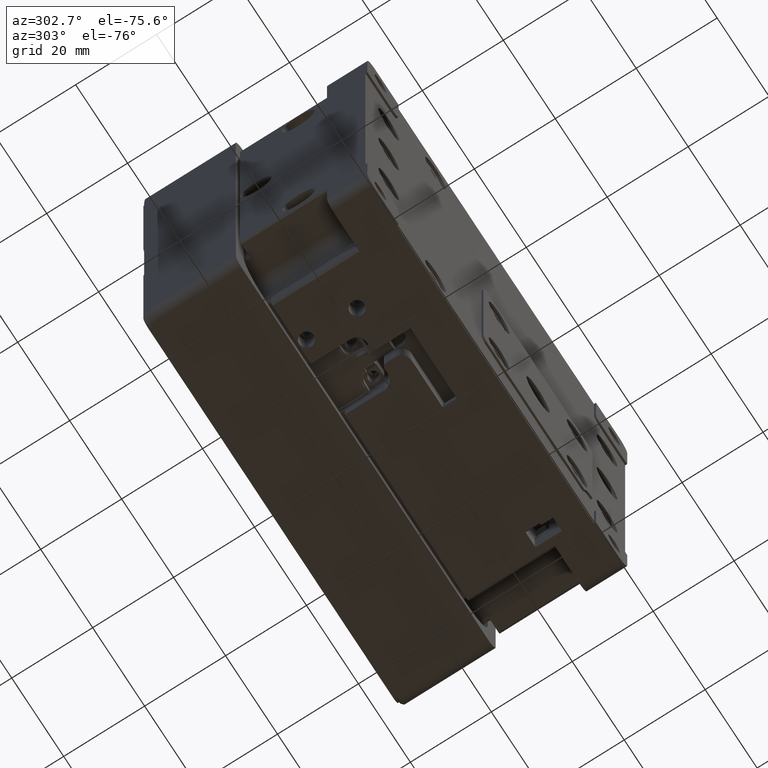
[diagram: clean part render]
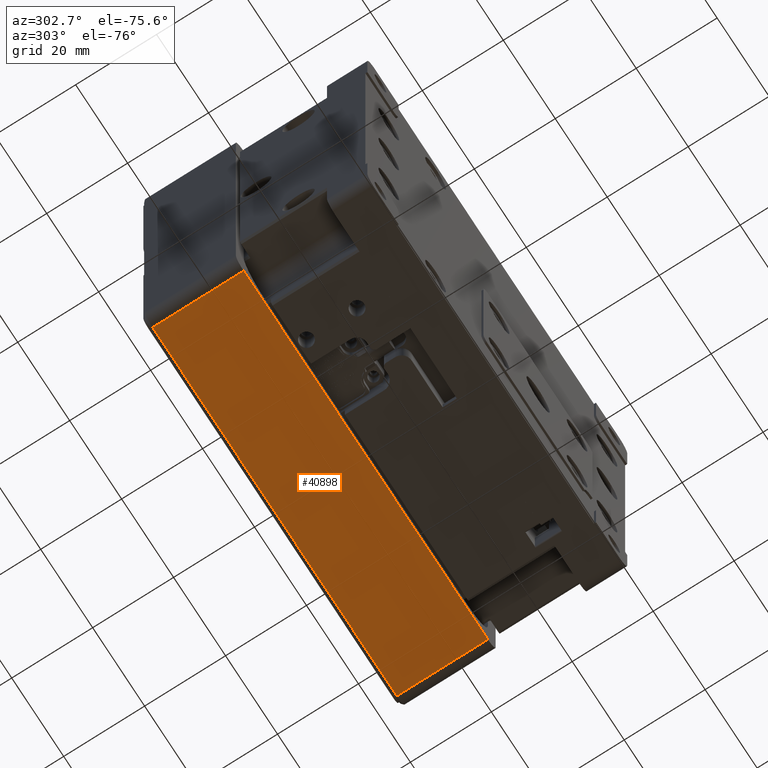
[diagram: same view with one face highlighted and labeled with its STEP entity id]
A machine part, auxiliary view. The second image highlights one B-rep face of the part: STEP entity #40898.
In plain terms, the highlighted planar face has unit normal (0, 0, 1).
Its self-contained STEP definition (entity closure, byte-faithful):
#3971 = ORIENTED_EDGE ( 'NONE', *, *, #10788, .T. ) ;
#4860 = FACE_OUTER_BOUND ( 'NONE', #13596, .T. ) ;
#6043 = CARTESIAN_POINT ( 'NONE',  ( -47.00000000000001421, 55.00000000001590905, -50.00000000003127809 ) ) ;
#6598 = ORIENTED_EDGE ( 'NONE', *, *, #32698, .F. ) ;
#8952 = VECTOR ( 'NONE', #54180, 1000.000000000000000 ) ;
#8966 = EDGE_CURVE ( 'NONE', #52054, #51327, #37172, .T. ) ;
#9589 = LINE ( 'NONE', #18769, #8952 ) ;
#10788 = EDGE_CURVE ( 'NONE', #52054, #29390, #34027, .T. ) ;
#11781 = CARTESIAN_POINT ( 'NONE',  ( -47.00000000000000711, 32.50000000000000000, -50.00000000000001421 ) ) ;
#12145 = DIRECTION ( 'NONE',  ( -1.000000000000000000, -0.000000000000000000, 0.000000000000000000 ) ) ;
#12566 = VECTOR ( 'NONE', #34674, 1000.000000000000000 ) ;
#13596 = EDGE_LOOP ( 'NONE', ( #21644, #3971, #6598, #24275 ) ) ;
#16131 = VECTOR ( 'NONE', #50430, 1000.000000000000000 ) ;
#18373 = DIRECTION ( 'NONE',  ( 1.000000000000000000, 0.000000000000000000, -0.000000000000000000 ) ) ;
#18769 = CARTESIAN_POINT ( 'NONE',  ( -47.00000000000000711, 55.49999999999999289, -50.00000000000001421 ) ) ;
#19934 = VECTOR ( 'NONE', #12145, 1000.000000000000000 ) ;
#20867 = CARTESIAN_POINT ( 'NONE',  ( 47.00000000000000000, 54.99999999999999289, -50.00000000000001421 ) ) ;
#21418 = LINE ( 'NONE', #44694, #12566 ) ;
#21644 = ORIENTED_EDGE ( 'NONE', *, *, #8966, .F. ) ;
#24275 = ORIENTED_EDGE ( 'NONE', *, *, #51474, .F. ) ;
#29390 = VERTEX_POINT ( 'NONE', #11781 ) ;
#30408 = CARTESIAN_POINT ( 'NONE',  ( 46.99999999999999289, 32.50000000000000000, -50.00000000000001421 ) ) ;
#31338 = CARTESIAN_POINT ( 'NONE',  ( -50.00000000000000711, 55.49999999999999289, -50.00000000000001421 ) ) ;
#32698 = EDGE_CURVE ( 'NONE', #40732, #29390, #9589, .T. ) ;
#34027 = LINE ( 'NONE', #51561, #19934 ) ;
#34674 = DIRECTION ( 'NONE',  ( -1.000000000000000000, -0.000000000000000000, 0.000000000000000000 ) ) ;
#35920 = PLANE ( 'NONE',  #47103 ) ;
#37172 = LINE ( 'NONE', #38020, #16131 ) ;
#38020 = CARTESIAN_POINT ( 'NONE',  ( 46.99999999999999289, 55.49999999999999289, -50.00000000000001421 ) ) ;
#40732 = VERTEX_POINT ( 'NONE', #6043 ) ;
#40898 = ADVANCED_FACE ( 'NONE', ( #4860 ), #35920, .F. ) ;
#44694 = CARTESIAN_POINT ( 'NONE',  ( -50.00000000000000711, 54.99999999999999289, -50.00000000000001421 ) ) ;
#47103 = AXIS2_PLACEMENT_3D ( 'NONE', #31338, #48881, #18373 ) ;
#48881 = DIRECTION ( 'NONE',  ( 0.000000000000000000, 0.000000000000000000, 1.000000000000000000 ) ) ;
#50430 = DIRECTION ( 'NONE',  ( -0.000000000000000000, 1.000000000000000000, 0.000000000000000000 ) ) ;
#51327 = VERTEX_POINT ( 'NONE', #20867 ) ;
#51474 = EDGE_CURVE ( 'NONE', #51327, #40732, #21418, .T. ) ;
#51561 = CARTESIAN_POINT ( 'NONE',  ( 0.000000000000000000, 32.50000000000000000, -50.00000000000001421 ) ) ;
#52054 = VERTEX_POINT ( 'NONE', #30408 ) ;
#54180 = DIRECTION ( 'NONE',  ( -0.000000000000000000, -1.000000000000000000, 0.000000000000000000 ) ) ;